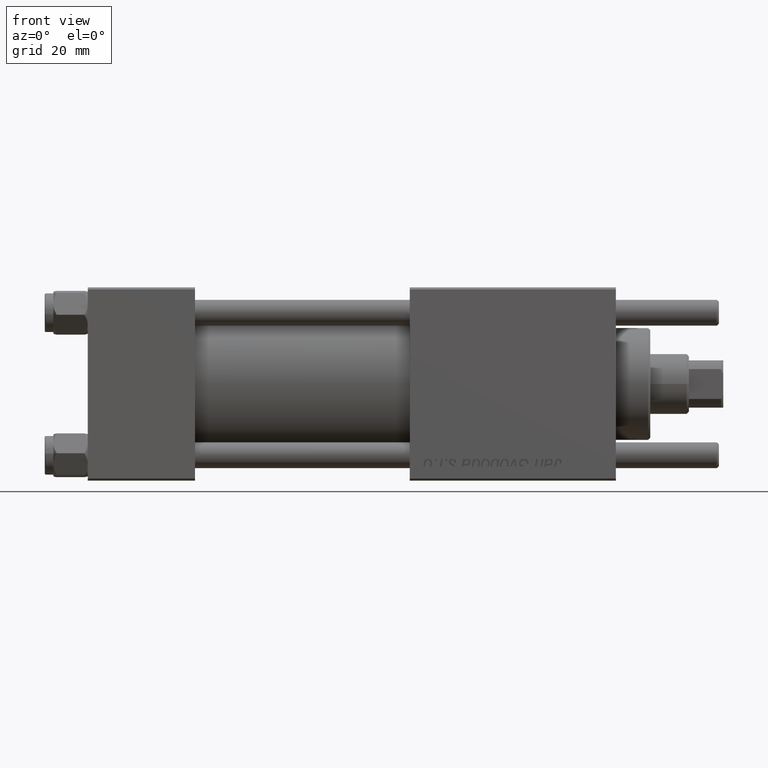
[diagram: clean part render]
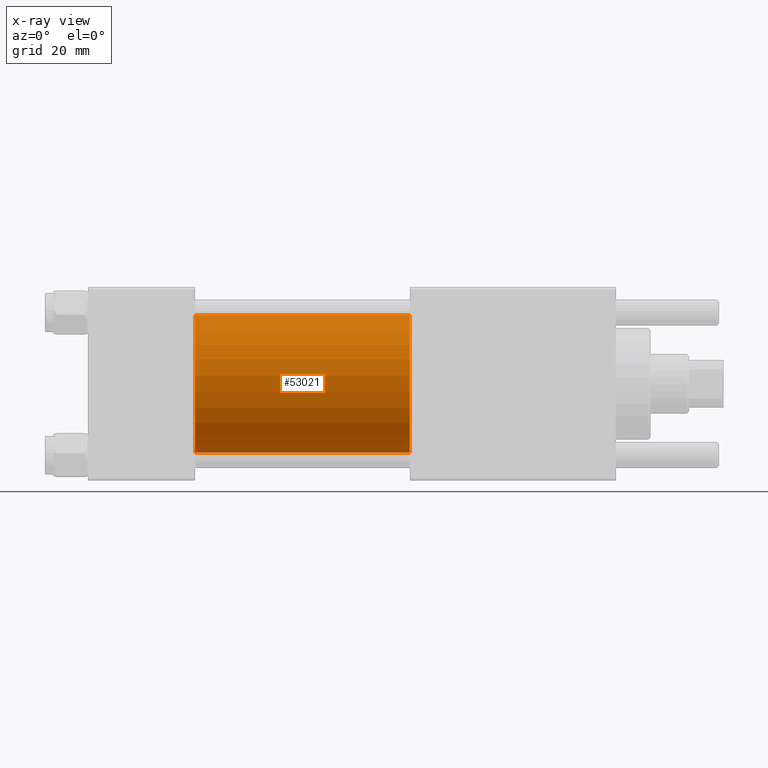
[diagram: x-ray — body ghosted, one internal face saturated and labeled with its STEP entity id]
A machine part, front view, then the same camera in x-ray: the body is ghosted and one INTERNAL B-rep face — a face not visible from any outside direction — is saturated and labeled: STEP entity #53021.
In plain terms, the highlighted cylindrical surface (partial cylindrical patch) has radius 16 mm, axis along (-1, -0, -0).
Its self-contained STEP definition (entity closure, byte-faithful):
#396 = CIRCLE ( 'NONE', #43620, 16.00000000000000000 ) ;
#994 = DIRECTION ( 'NONE',  ( 0.000000000000000000, 0.000000000000000000, -1.000000000000000000 ) ) ;
#1619 = AXIS2_PLACEMENT_3D ( 'NONE', #18962, #11220, #14371 ) ;
#3417 = CIRCLE ( 'NONE', #56752, 16.00000000000000000 ) ;
#5315 = DIRECTION ( 'NONE',  ( 1.000000000000000000, 0.000000000000000000, 0.000000000000000000 ) ) ;
#6469 = EDGE_LOOP ( 'NONE', ( #51452, #14823, #45107, #7343 ) ) ;
#7049 = VECTOR ( 'NONE', #56564, 1000.000000000000000 ) ;
#7343 = ORIENTED_EDGE ( 'NONE', *, *, #19750, .F. ) ;
#8238 = CARTESIAN_POINT ( 'NONE',  ( 75.00000000000001421, -6.426503353294456087E-16, -16.00000000000000000 ) ) ;
#11220 = DIRECTION ( 'NONE',  ( -1.000000000000000000, -0.000000000000000000, -0.000000000000000000 ) ) ;
#12141 = CARTESIAN_POINT ( 'NONE',  ( 75.00000000000001421, -2.602085213965210642E-15, 0.000000000000000000 ) ) ;
#12261 = LINE ( 'NONE', #8238, #41093 ) ;
#12522 = CARTESIAN_POINT ( 'NONE',  ( 75.00000000000001421, -2.602085213965210642E-15, 16.00000000000000000 ) ) ;
#14064 = EDGE_CURVE ( 'NONE', #35071, #23128, #396, .T. ) ;
#14371 = DIRECTION ( 'NONE',  ( 0.000000000000000000, 0.000000000000000000, 1.000000000000000000 ) ) ;
#14823 = ORIENTED_EDGE ( 'NONE', *, *, #46177, .T. ) ;
#15843 = CARTESIAN_POINT ( 'NONE',  ( 75.00000000000001421, -2.602085213965210642E-15, 16.00000000000000000 ) ) ;
#18962 = CARTESIAN_POINT ( 'NONE',  ( 75.00000000000001421, -2.602085213965210642E-15, 0.000000000000000000 ) ) ;
#19750 = EDGE_CURVE ( 'NONE', #42908, #35071, #20866, .T. ) ;
#20486 = CARTESIAN_POINT ( 'NONE',  ( 25.00000000000000000, -6.426503353294456087E-16, -16.00000000000000000 ) ) ;
#20866 = LINE ( 'NONE', #12522, #7049 ) ;
#22286 = EDGE_CURVE ( 'NONE', #42908, #32473, #3417, .T. ) ;
#23128 = VERTEX_POINT ( 'NONE', #20486 ) ;
#24438 = FACE_OUTER_BOUND ( 'NONE', #6469, .T. ) ;
#29960 = DIRECTION ( 'NONE',  ( 0.000000000000000000, 0.000000000000000000, -1.000000000000000000 ) ) ;
#32205 = CYLINDRICAL_SURFACE ( 'NONE', #1619, 16.00000000000000000 ) ;
#32473 = VERTEX_POINT ( 'NONE', #56238 ) ;
#35071 = VERTEX_POINT ( 'NONE', #52667 ) ;
#37874 = DIRECTION ( 'NONE',  ( -1.000000000000000000, -0.000000000000000000, -0.000000000000000000 ) ) ;
#40443 = CARTESIAN_POINT ( 'NONE',  ( 25.00000000000000000, -2.602085213965210642E-15, 0.000000000000000000 ) ) ;
#41093 = VECTOR ( 'NONE', #37874, 1000.000000000000000 ) ;
#42908 = VERTEX_POINT ( 'NONE', #15843 ) ;
#43620 = AXIS2_PLACEMENT_3D ( 'NONE', #40443, #5315, #994 ) ;
#45107 = ORIENTED_EDGE ( 'NONE', *, *, #14064, .F. ) ;
#46177 = EDGE_CURVE ( 'NONE', #32473, #23128, #12261, .T. ) ;
#47264 = DIRECTION ( 'NONE',  ( 1.000000000000000000, 0.000000000000000000, 0.000000000000000000 ) ) ;
#51452 = ORIENTED_EDGE ( 'NONE', *, *, #22286, .T. ) ;
#52667 = CARTESIAN_POINT ( 'NONE',  ( 25.00000000000000000, -2.602085213965210642E-15, 16.00000000000000000 ) ) ;
#53021 = ADVANCED_FACE ( 'NONE', ( #24438 ), #32205, .F. ) ;
#56238 = CARTESIAN_POINT ( 'NONE',  ( 75.00000000000001421, -6.426503353294456087E-16, -16.00000000000000000 ) ) ;
#56564 = DIRECTION ( 'NONE',  ( -1.000000000000000000, -0.000000000000000000, -0.000000000000000000 ) ) ;
#56752 = AXIS2_PLACEMENT_3D ( 'NONE', #12141, #47264, #29960 ) ;